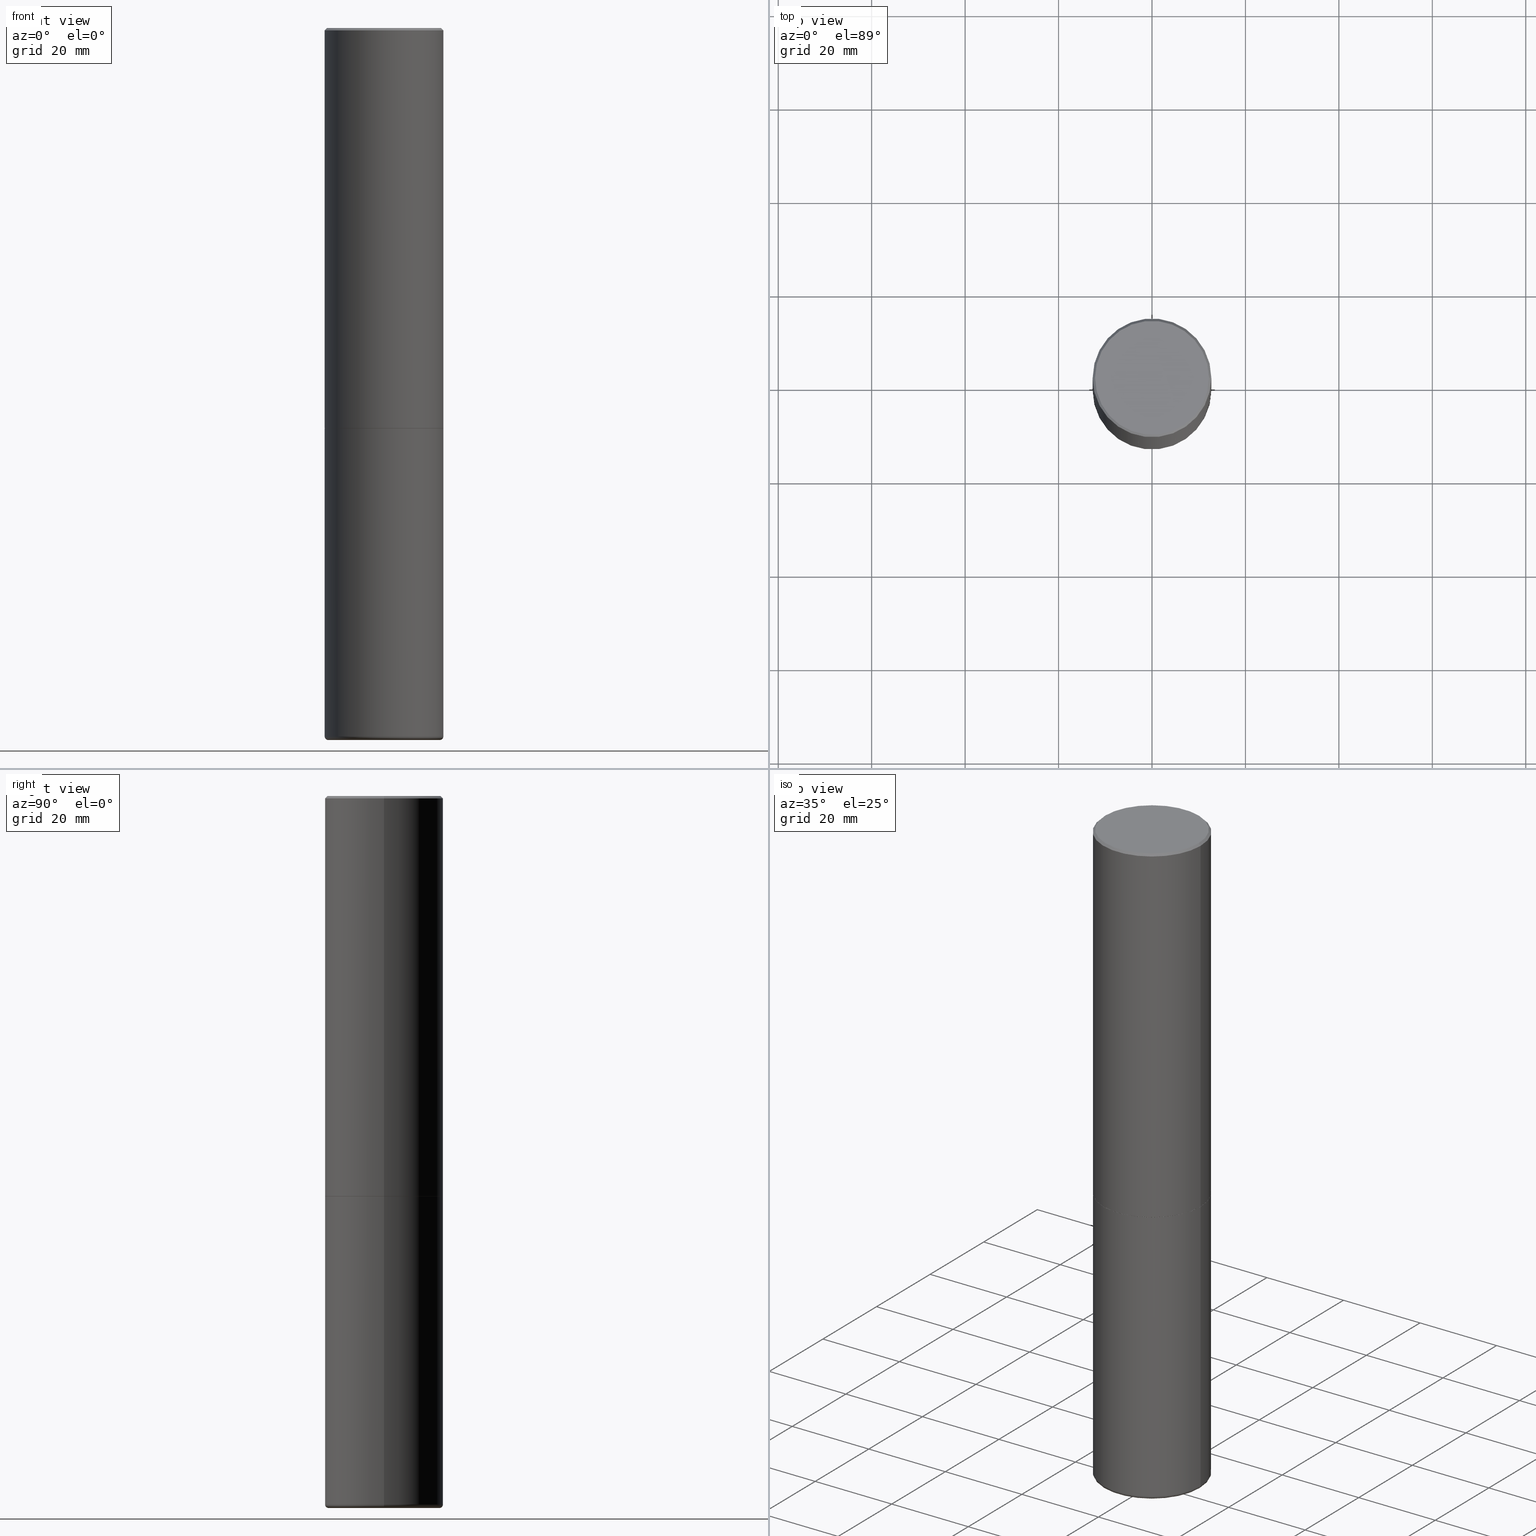
[diagram: canonical four-view strip — front | top / right | iso, engineering-drawing reading convention]
A machine part, canonical four-view strip (front | top / right | iso — engineering-drawing reading convention). The complete STEP part file that produces these views, byte-faithful:
ISO-10303-21;
HEADER;
FILE_DESCRIPTION (( 'STEP AP203' ),
    '1' );
FILE_NAME ('35124.STEP',
    '2022-07-29T12:17:49',
    ( '' ),
    ( '' ),
    'SwSTEP 2.0',
    'SolidWorks 2022',
    '' );
FILE_SCHEMA (( 'CONFIG_CONTROL_DESIGN' ));
ENDSEC;

DATA;
#1 = VERTEX_POINT ( 'NONE', #338 ) ;
#2 = ADVANCED_FACE ( 'NONE', ( #333 ), #213, .T. ) ;
#3 = DIRECTION ( 'NONE',  ( -2.445468806185136597E-29, 3.491481338843145583E-15, 1.000000000000000000 ) ) ;
#4 = EDGE_CURVE ( 'NONE', #128, #76, #237, .T. ) ;
#5 = DIRECTION ( 'NONE',  ( 1.000000000000000000, -6.982962677686269077E-15, 4.883557194083114022E-29 ) ) ;
#6 = ORIENTED_EDGE ( 'NONE', *, *, #396, .T. ) ;
#7 = DIRECTION ( 'NONE',  ( -2.445468806185136597E-29, 3.491481338843145583E-15, 1.000000000000000000 ) ) ;
#8 = FACE_OUTER_BOUND ( 'NONE', #329, .T. ) ;
#9 = CARTESIAN_POINT ( 'NONE',  ( 4.890937612370341472E-31, -6.982962677686388984E-17, -0.02000000000000028144 ) ) ;
#10 = ORIENTED_EDGE ( 'NONE', *, *, #309, .T. ) ;
#11 = CONICAL_SURFACE ( 'NONE', #377, 0.4377382039350493637, 1.535889741755009474 ) ;
#12 = DIRECTION ( 'NONE',  ( -2.445468806185136597E-29, 3.491481338843145583E-15, 1.000000000000000000 ) ) ;
#13 = DIRECTION ( 'NONE',  ( 1.000000000000000000, -6.982962677686267499E-15, 4.876036955247141175E-29 ) ) ;
#14 = EDGE_CURVE ( 'NONE', #248, #27, #313, .T. ) ;
#15 = ORIENTED_EDGE ( 'NONE', *, *, #55, .T. ) ;
#16 = FACE_OUTER_BOUND ( 'NONE', #345, .T. ) ;
#17 = AXIS2_PLACEMENT_3D ( 'NONE', #258, #407, #67 ) ;
#18 = DIRECTION ( 'NONE',  ( -2.445468806185136597E-29, 3.491481338843145583E-15, 1.000000000000000000 ) ) ;
#19 = CC_DESIGN_PERSON_AND_ORGANIZATION_ASSIGNMENT ( #446, #383, ( #208 ) ) ;
#20 = EDGE_CURVE ( 'NONE', #176, #262, #395, .T. ) ;
#21 = DIRECTION ( 'NONE',  ( 1.000000000000000000, -6.982962677686269866E-15, 0.000000000000000000 ) ) ;
#22 = PERSON ( 'UNSPECIFIED', 'UNSPECIFIED', 'UNSPECIFIED', ('UNSPECIFIED'), ('UNSPECIFIED'), ('UNSPECIFIED') ) ;
#23 = PLANE ( 'NONE',  #280 ) ;
#24 = VERTEX_POINT ( 'NONE', #394 ) ;
#25 = LINE ( 'NONE', #299, #433 ) ;
#26 = VECTOR ( 'NONE', #474, 39.37007874015748143 ) ;
#27 = VERTEX_POINT ( 'NONE', #469 ) ;
#28 = FACE_OUTER_BOUND ( 'NONE', #416, .T. ) ;
#29 = FACE_OUTER_BOUND ( 'NONE', #44, .T. ) ;
#30 = ORIENTED_EDGE ( 'NONE', *, *, #174, .T. ) ;
#31 = SHAPE_DEFINITION_REPRESENTATION ( #153, #230 ) ;
#32 = CARTESIAN_POINT ( 'NONE',  ( 0.000000000000000000, 0.000000000000000000, 0.000000000000000000 ) ) ;
#33 = MANIFOLD_SOLID_BREP ( 'Body-Move/Copy2[1]', #363 ) ;
#34 = PERSON_AND_ORGANIZATION ( #22, #91 ) ;
#35 = AXIS2_PLACEMENT_3D ( 'NONE', #87, #240, #390 ) ;
#36 = PERSON_AND_ORGANIZATION ( #22, #91 ) ;
#37 = CIRCLE ( 'NONE', #439, 0.4999999999999994449 ) ;
#38 = ORIENTED_EDGE ( 'NONE', *, *, #461, .T. ) ;
#39 = CC_DESIGN_DATE_AND_TIME_ASSIGNMENT ( #297, #157, ( #113 ) ) ;
#40 = EDGE_LOOP ( 'NONE', ( #392, #181, #387, #49 ) ) ;
#41 = PERSON_AND_ORGANIZATION ( #22, #91 ) ;
#42 = ORIENTED_EDGE ( 'NONE', *, *, #14, .T. ) ;
#43 = DIRECTION ( 'NONE',  ( 1.000000000000000000, -6.982962677686210701E-15, 0.000000000000000000 ) ) ;
#44 = EDGE_LOOP ( 'NONE', ( #197, #86, #382, #441 ) ) ;
#45 = CARTESIAN_POINT ( 'NONE',  ( -0.4989999999999994440, -8.238141267152723273E-15, -3.375000000000000888 ) ) ;
#46 = VECTOR ( 'NONE', #277, 39.37007874015748854 ) ;
#47 = AXIS2_PLACEMENT_3D ( 'NONE', #180, #284, #62 ) ;
#48 = DIRECTION ( 'NONE',  ( 2.445468806185136597E-29, -3.491481338843145583E-15, -1.000000000000000000 ) ) ;
#49 = ORIENTED_EDGE ( 'NONE', *, *, #14, .F. ) ;
#50 = DIRECTION ( 'NONE',  ( -2.445468806185136597E-29, 3.491481338843145583E-15, 1.000000000000000000 ) ) ;
#51 = CARTESIAN_POINT ( 'NONE',  ( -0.4377382039350493637, -1.789120346210978746E-14, -5.999720740230696236 ) ) ;
#52 = AXIS2_PLACEMENT_3D ( 'NONE', #169, #132, #165 ) ;
#53 = EDGE_LOOP ( 'NONE', ( #172, #64, #30, #478 ) ) ;
#54 = CC_DESIGN_SECURITY_CLASSIFICATION ( #208, ( #71 ) ) ;
#55 = EDGE_CURVE ( 'NONE', #97, #487, #202, .T. ) ;
#56 = CARTESIAN_POINT ( 'NONE',  ( -3.131554243005659264E-46, 4.471029511141341874E-32, 1.280553747030123384E-17 ) ) ;
#57 = LINE ( 'NONE', #175, #403 ) ;
#58 = ADVANCED_FACE ( 'NONE', ( #8 ), #282, .F. ) ;
#59 = FACE_OUTER_BOUND ( 'NONE', #158, .T. ) ;
#60 = AXIS2_PLACEMENT_3D ( 'NONE', #125, #85, #43 ) ;
#61 = AXIS2_PLACEMENT_3D ( 'NONE', #111, #3, #301 ) ;
#62 = DIRECTION ( 'NONE',  ( 1.000000000000000000, -6.982962677686265922E-15, 4.876176775795935793E-29 ) ) ;
#63 = EDGE_CURVE ( 'NONE', #487, #159, #246, .T. ) ;
#64 = ORIENTED_EDGE ( 'NONE', *, *, #250, .T. ) ;
#65 = CARTESIAN_POINT ( 'NONE',  ( 0.4999999999999990563, -3.500078625662622769E-15, -0.02000000000000028144 ) ) ;
#66 = DATE_AND_TIME ( #413, #214 ) ;
#67 = DIRECTION ( 'NONE',  ( 1.000000000000000000, -6.982962677686267499E-15, 4.876036955247141175E-29 ) ) ;
#68 = COORDINATED_UNIVERSAL_TIME_OFFSET ( 5, 0, .BEHIND. ) ;
#69 = VECTOR ( 'NONE', #352, 39.37007874015748143 ) ;
#70 = CARTESIAN_POINT ( 'NONE',  ( 1.467212991605616561E-28, -2.094791300278565904E-14, -5.999720740230696236 ) ) ;
#71 = PRODUCT_DEFINITION_FORMATION_WITH_SPECIFIED_SOURCE ( 'ANY', '', #350, .NOT_KNOWN. ) ;
#72 = APPROVAL_STATUS ( 'not_yet_approved' ) ;
#73 = SECURITY_CLASSIFICATION_LEVEL ( 'unclassified' ) ;
#74 = ORIENTED_EDGE ( 'NONE', *, *, #20, .T. ) ;
#75 = CALENDAR_DATE ( 2022, 29, 7 ) ;
#76 = VERTEX_POINT ( 'NONE', #354 ) ;
#77 = UNCERTAINTY_MEASURE_WITH_UNIT (LENGTH_MEASURE( 1.000000000000000082E-05 ), #452, 'distance_accuracy_value', 'NONE');
#78 = CC_DESIGN_PERSON_AND_ORGANIZATION_ASSIGNMENT ( #191, #109, ( #71 ) ) ;
#79 = EDGE_CURVE ( 'NONE', #159, #163, #316, .T. ) ;
#80 = AXIS2_PLACEMENT_3D ( 'NONE', #9, #48, #273 ) ;
#81 = DIRECTION ( 'NONE',  ( -1.000000000000000000, 6.982962677686268288E-15, 0.000000000000000000 ) ) ;
#82 = CC_DESIGN_APPROVAL ( #217, ( #113 ) ) ;
#83 = ADVANCED_FACE ( 'NONE', ( #95 ), #271, .T. ) ;
#84 = EDGE_LOOP ( 'NONE', ( #160, #342, #123 ) ) ;
#85 = DIRECTION ( 'NONE',  ( -6.982962677686266711E-15, -1.000000000000000000, 3.491481338843145583E-15 ) ) ;
#86 = ORIENTED_EDGE ( 'NONE', *, *, #274, .T. ) ;
#87 = CARTESIAN_POINT ( 'NONE',  ( 1.467281283711081734E-28, -2.094888803305886955E-14, -5.999999999999999112 ) ) ;
#88 = ORIENTED_EDGE ( 'NONE', *, *, #167, .T. ) ;
#89 = DIRECTION ( 'NONE',  ( 1.000000000000000000, -6.982962677686268288E-15, 0.000000000000000000 ) ) ;
#90 = CLOSED_SHELL ( 'NONE', ( #234, #406, #83, #96, #477, #400, #337, #429 ) ) ;
#91 = ORGANIZATION ( 'UNSPECIFIED', 'UNSPECIFIED', '' ) ;
#92 = ORIENTED_EDGE ( 'NONE', *, *, #365, .T. ) ;
#93 = DIRECTION ( 'NONE',  ( -0.9999619230641716427, 6.952228252019315186E-15, -0.008726535498333042040 ) ) ;
#94 = EDGE_LOOP ( 'NONE', ( #6, #298, #353, #229 ) ) ;
#95 = FACE_OUTER_BOUND ( 'NONE', #233, .T. ) ;
#96 = ADVANCED_FACE ( 'NONE', ( #460 ), #310, .T. ) ;
#97 = VERTEX_POINT ( 'NONE', #205 ) ;
#98 = DIRECTION ( 'NONE',  ( 1.000000000000000000, -6.982962677686269866E-15, 0.000000000000000000 ) ) ;
#99 = CIRCLE ( 'NONE', #52, 0.4999999999999994449 ) ;
#100 = ADVANCED_FACE ( 'NONE', ( #428 ), #488, .T. ) ;
#101 = EDGE_LOOP ( 'NONE', ( #126, #304, #385, #415 ) ) ;
#102 = AXIS2_PLACEMENT_3D ( 'NONE', #70, #146, #294 ) ;
#103 = CARTESIAN_POINT ( 'NONE',  ( 0.4697382039350493921, -2.417152604063207250E-14, -5.999999999999999112 ) ) ;
#104 = CARTESIAN_POINT ( 'NONE',  ( -0.4377382039350493637, -1.789120346210978746E-14, -5.999720740230696236 ) ) ;
#105 = DIRECTION ( 'NONE',  ( 7.105427357601001859E-15, 1.000000000000000000, -3.491481338843145583E-15 ) ) ;
#106 = AXIS2_PLACEMENT_3D ( 'NONE', #289, #434, #430 ) ;
#107 = VECTOR ( 'NONE', #367, 39.37007874015748143 ) ;
#108 = DIRECTION ( 'NONE',  ( -2.445468806185136597E-29, 3.491481338843145583E-15, 1.000000000000000000 ) ) ;
#109 = PERSON_AND_ORGANIZATION_ROLE ( 'design_supplier' ) ;
#110 = DIRECTION ( 'NONE',  ( 0.7071067811868130271, -2.468850131085038979E-15, 0.7071067811862817853 ) ) ;
#111 = CARTESIAN_POINT ( 'NONE',  ( 0.000000000000000000, 0.000000000000000000, 0.000000000000000000 ) ) ;
#112 = COORDINATED_UNIVERSAL_TIME_OFFSET ( 5, 0, .BEHIND. ) ;
#113 = PRODUCT_DEFINITION ( 'UNKNOWN', '', #71, #455 ) ;
#114 = COORDINATED_UNIVERSAL_TIME_OFFSET ( 5, 0, .BEHIND. ) ;
#115 = CYLINDRICAL_SURFACE ( 'NONE', #453, 0.4999999999999992228 ) ;
#116 =( LENGTH_UNIT ( ) NAMED_UNIT ( * ) SI_UNIT ( $, .METRE. ) );
#117 = AXIS2_PLACEMENT_3D ( 'NONE', #275, #422, #129 ) ;
#118 = DIRECTION ( 'NONE',  ( 1.000000000000000000, -6.982962677686267499E-15, 4.876176775795935793E-29 ) ) ;
#119 = AXIS2_PLACEMENT_3D ( 'NONE', #251, #219, #335 ) ;
#120 = ORIENTED_EDGE ( 'NONE', *, *, #249, .T. ) ;
#121 =( NAMED_UNIT ( * ) SI_UNIT ( $, .STERADIAN. ) SOLID_ANGLE_UNIT ( ) );
#122 = CARTESIAN_POINT ( 'NONE',  ( 1.467212991605616561E-28, -2.094791300278565904E-14, -5.999720740230696236 ) ) ;
#123 = ORIENTED_EDGE ( 'NONE', *, *, #63, .F. ) ;
#124 = AXIS2_PLACEMENT_3D ( 'NONE', #281, #170, #464 ) ;
#125 = CARTESIAN_POINT ( 'NONE',  ( 0.4700000000000004730, -2.412614003975345375E-14, -5.970001142308075437 ) ) ;
#126 = ORIENTED_EDGE ( 'NONE', *, *, #371, .F. ) ;
#127 = CARTESIAN_POINT ( 'NONE',  ( 8.253457220874838256E-29, -1.178374951859561925E-14, -3.375000000000000888 ) ) ;
#128 = VERTEX_POINT ( 'NONE', #319 ) ;
#129 = DIRECTION ( 'NONE',  ( 1.000000000000000000, -6.982962677686266711E-15, 0.000000000000000000 ) ) ;
#130 = CARTESIAN_POINT ( 'NONE',  ( 4.890937612370341472E-31, -6.982962677686388984E-17, -0.02000000000000028144 ) ) ;
#131 = CIRCLE ( 'NONE', #17, 0.4799999999999988165 ) ;
#132 = DIRECTION ( 'NONE',  ( -2.445468806185136597E-29, 3.491481338843145583E-15, 1.000000000000000000 ) ) ;
#133 = CC_DESIGN_PERSON_AND_ORGANIZATION_ASSIGNMENT ( #268, #228, ( #113 ) ) ;
#134 = EDGE_LOOP ( 'NONE', ( #283, #15, #231 ) ) ;
#135 = FACE_OUTER_BOUND ( 'NONE', #370, .T. ) ;
#136 = LINE ( 'NONE', #103, #107 ) ;
#137 = CIRCLE ( 'NONE', #318, 0.4697382039350493921 ) ;
#138 = DIRECTION ( 'NONE',  ( 1.000000000000000000, -6.982962677686266711E-15, 4.876176775795935232E-29 ) ) ;
#139 = EDGE_CURVE ( 'NONE', #76, #27, #99, .T. ) ;
#140 = DIRECTION ( 'NONE',  ( -2.445468806185136597E-29, 3.491481338843145583E-15, 1.000000000000000000 ) ) ;
#141 = CARTESIAN_POINT ( 'NONE',  ( 1.467281283711081734E-28, -2.094888803305886955E-14, -5.999999999999999112 ) ) ;
#142 = APPLICATION_CONTEXT ( 'configuration controlled 3d designs of mechanical parts and assemblies' ) ;
#143 = ORIENTED_EDGE ( 'NONE', *, *, #305, .T. ) ;
#144 = AXIS2_PLACEMENT_3D ( 'NONE', #369, #402, #286 ) ;
#145 = LOCAL_TIME ( 8, 17, 49.00000000000000000, #112 ) ;
#146 = DIRECTION ( 'NONE',  ( -2.445468806185136597E-29, 3.491481338843145583E-15, 1.000000000000000000 ) ) ;
#147 = EDGE_CURVE ( 'NONE', #360, #176, #468, .T. ) ;
#148 = PERSON_AND_ORGANIZATION ( #22, #91 ) ;
#149 = CARTESIAN_POINT ( 'NONE',  ( 8.251011752068656016E-29, -1.178025803725677782E-14, -3.374000000000001886 ) ) ;
#150 = DIRECTION ( 'NONE',  ( 1.000000000000000000, -6.982962677686266711E-15, 0.000000000000000000 ) ) ;
#151 = ORIENTED_EDGE ( 'NONE', *, *, #461, .F. ) ;
#152 = DIRECTION ( 'NONE',  ( 0.000000000000000000, 0.000000000000000000, 1.000000000000000000 ) ) ;
#153 = PRODUCT_DEFINITION_SHAPE ( 'NONE', 'NONE',  #113 ) ;
#154 = PERSON_AND_ORGANIZATION_ROLE ( 'creator' ) ;
#155 = VECTOR ( 'NONE', #351, 39.37007874015748143 ) ;
#156 = APPROVAL_PERSON_ORGANIZATION ( #41, #217, #259 ) ;
#157 = DATE_TIME_ROLE ( 'creation_date' ) ;
#158 = EDGE_LOOP ( 'NONE', ( #491, #463 ) ) ;
#159 = VERTEX_POINT ( 'NONE', #51 ) ;
#160 = ORIENTED_EDGE ( 'NONE', *, *, #55, .F. ) ;
#161 = DIRECTION ( 'NONE',  ( -1.000000000000000000, 6.982962677686268288E-15, 0.000000000000000000 ) ) ;
#162 = CIRCLE ( 'NONE', #412, 0.02999999999999913500 ) ;
#163 = VERTEX_POINT ( 'NONE', #207 ) ;
#164 = CIRCLE ( 'NONE', #279, 0.4989999999999994440 ) ;
#165 = DIRECTION ( 'NONE',  ( 1.000000000000000000, -6.982962677686266711E-15, 0.000000000000000000 ) ) ;
#166 = AXIS2_PLACEMENT_3D ( 'NONE', #448, #190, #263 ) ;
#167 = EDGE_CURVE ( 'NONE', #176, #360, #164, .T. ) ;
#168 = DIRECTION ( 'NONE',  ( 2.445468806185136597E-29, -3.491481338843145583E-15, -1.000000000000000000 ) ) ;
#169 = CARTESIAN_POINT ( 'NONE',  ( 8.253457220874838256E-29, -1.178374951859561925E-14, -3.375000000000000888 ) ) ;
#170 = DIRECTION ( 'NONE',  ( 2.438088387897960049E-29, -3.491481338843145188E-15, -1.000000000000000000 ) ) ;
#171 = APPROVAL_PERSON_ORGANIZATION ( #380, #269, #454 ) ;
#172 = ORIENTED_EDGE ( 'NONE', *, *, #249, .F. ) ;
#173 = FACE_OUTER_BOUND ( 'NONE', #101, .T. ) ;
#174 = EDGE_CURVE ( 'NONE', #24, #248, #356, .T. ) ;
#175 = CARTESIAN_POINT ( 'NONE',  ( -0.4999999999999990563, 3.421651712066262957E-15, -0.02000000000000028144 ) ) ;
#176 = VERTEX_POINT ( 'NONE', #315 ) ;
#177 = DIRECTION ( 'NONE',  ( -2.445468806185136597E-29, 3.491481338843145583E-15, 1.000000000000000000 ) ) ;
#178 = CIRCLE ( 'NONE', #334, 0.4999999999999994449 ) ;
#179 = CARTESIAN_POINT ( 'NONE',  ( 1.459945156640402969E-28, -2.084414758124090713E-14, -5.970001142308075437 ) ) ;
#180 = CARTESIAN_POINT ( 'NONE',  ( 8.253457220874838256E-29, -1.178374951859561925E-14, -3.375000000000000888 ) ) ;
#181 = ORIENTED_EDGE ( 'NONE', *, *, #4, .T. ) ;
#182 = APPROVAL_DATE_TIME ( #442, #269 ) ;
#183 = CC_DESIGN_PERSON_AND_ORGANIZATION_ASSIGNMENT ( #34, #154, ( #71 ) ) ;
#184 = DIRECTION ( 'NONE',  ( -2.445468806185136597E-29, 3.491481338843145583E-15, 1.000000000000000000 ) ) ;
#185 = ORIENTED_EDGE ( 'NONE', *, *, #405, .F. ) ;
#186 = CIRCLE ( 'NONE', #473, 0.4999999999999989453 ) ;
#187 = DIRECTION ( 'NONE',  ( -2.445468806185136877E-29, 3.491481338843145188E-15, 1.000000000000000000 ) ) ;
#188 = VERTEX_POINT ( 'NONE', #199 ) ;
#189 = FACE_OUTER_BOUND ( 'NONE', #312, .T. ) ;
#190 = DIRECTION ( 'NONE',  ( -2.445468806185136597E-29, 3.491481338843145583E-15, 1.000000000000000000 ) ) ;
#191 = PERSON_AND_ORGANIZATION ( #22, #91 ) ;
#192 = APPLICATION_PROTOCOL_DEFINITION ( 'international standard', 'config_control_design', 1994, #276 ) ;
#193 = AXIS2_PLACEMENT_3D ( 'NONE', #130, #168, #243 ) ;
#194 = CALENDAR_DATE ( 2022, 29, 7 ) ;
#195 = FACE_OUTER_BOUND ( 'NONE', #134, .T. ) ;
#196 = EDGE_CURVE ( 'NONE', #347, #331, #254, .T. ) ;
#197 = ORIENTED_EDGE ( 'NONE', *, *, #355, .F. ) ;
#198 = EDGE_CURVE ( 'NONE', #24, #163, #451, .T. ) ;
#199 = CARTESIAN_POINT ( 'NONE',  ( -0.4799999999999988165, 3.386736898677831703E-15, 1.280553747027767124E-17 ) ) ;
#200 = ORIENTED_EDGE ( 'NONE', *, *, #196, .T. ) ;
#201 = CONICAL_SURFACE ( 'NONE', #386, 0.4989999999999994440, 0.7853981633978239785 ) ;
#202 = LINE ( 'NONE', #308, #155 ) ;
#203 = CARTESIAN_POINT ( 'NONE',  ( -0.4999999999999991673, 3.552713678800495013E-15, -2.459467545127448967E-29 ) ) ;
#204 = ORIENTED_EDGE ( 'NONE', *, *, #174, .F. ) ;
#205 = CARTESIAN_POINT ( 'NONE',  ( 1.464166226079622307E-28, -2.088464020784759386E-14, -5.984434585313348265 ) ) ;
#206 = ADVANCED_FACE ( 'NONE', ( #218 ), #241, .F. ) ;
#207 = CARTESIAN_POINT ( 'NONE',  ( -0.4697382039350493921, -1.745131562517441058E-14, -5.999999999999999112 ) ) ;
#208 = SECURITY_CLASSIFICATION ( '', '', #73 ) ;
#209 = ORIENTED_EDGE ( 'NONE', *, *, #285, .F. ) ;
#210 = CARTESIAN_POINT ( 'NONE',  ( -0.4999999999999994449, -2.372330153216321997E-15, -3.374000000000001886 ) ) ;
#211 = CARTESIAN_POINT ( 'NONE',  ( 0.4989999999999994440, -1.526824789476106186E-14, -3.375000000000000888 ) ) ;
#212 = CARTESIAN_POINT ( 'NONE',  ( -0.4999999999999990563, 3.421651712066262957E-15, -0.02000000000000028144 ) ) ;
#213 = TOROIDAL_SURFACE ( 'NONE', #438, 0.4700000000000004730, 0.02999999999999915928 ) ;
#214 = LOCAL_TIME ( 8, 17, 49.00000000000000000, #482 ) ;
#215 = LINE ( 'NONE', #437, #232 ) ;
#216 = ORIENTED_EDGE ( 'NONE', *, *, #139, .T. ) ;
#217 = APPROVAL ( #72, 'UNSPECIFIED' ) ;
#218 = FACE_OUTER_BOUND ( 'NONE', #456, .T. ) ;
#219 = DIRECTION ( 'NONE',  ( -2.445468806185136597E-29, 3.491481338843145583E-15, 1.000000000000000000 ) ) ;
#220 = CALENDAR_DATE ( 2022, 29, 7 ) ;
#221 = DIMENSIONAL_EXPONENTS ( 1.000000000000000000, 0.000000000000000000, 0.000000000000000000, 0.000000000000000000, 0.000000000000000000, 0.000000000000000000, 0.000000000000000000 ) ;
#222 = VECTOR ( 'NONE', #110, 39.37007874015748854 ) ;
#223 = AXIS2_PLACEMENT_3D ( 'NONE', #291, #140, #21 ) ;
#224 = LINE ( 'NONE', #483, #393 ) ;
#225 = APPROVAL_DATE_TIME ( #378, #368 ) ;
#226 = ORIENTED_EDGE ( 'NONE', *, *, #466, .T. ) ;
#227 = ADVANCED_FACE ( 'NONE', ( #16 ), #256, .T. ) ;
#228 = PERSON_AND_ORGANIZATION_ROLE ( 'creator' ) ;
#229 = ORIENTED_EDGE ( 'NONE', *, *, #420, .F. ) ;
#230 = ADVANCED_BREP_SHAPE_REPRESENTATION ( '35124', ( #33, #366, #288 ), #293 ) ;
#231 = ORIENTED_EDGE ( 'NONE', *, *, #440, .F. ) ;
#232 = VECTOR ( 'NONE', #472, 39.37007874015748143 ) ;
#233 = EDGE_LOOP ( 'NONE', ( #151, #424, #226, #459 ) ) ;
#234 = ADVANCED_FACE ( 'NONE', ( #135 ), #317, .T. ) ;
#235 = ADVANCED_FACE ( 'NONE', ( #328 ), #325, .T. ) ;
#236 = EDGE_LOOP ( 'NONE', ( #307, #120, #209, #204 ) ) ;
#237 = LINE ( 'NONE', #203, #292 ) ;
#238 = ADVANCED_FACE ( 'NONE', ( #173 ), #432, .F. ) ;
#239 = ORIENTED_EDGE ( 'NONE', *, *, #396, .F. ) ;
#240 = DIRECTION ( 'NONE',  ( -2.445468806185136597E-29, 3.491481338843145583E-15, 1.000000000000000000 ) ) ;
#241 = CONICAL_SURFACE ( 'NONE', #411, 0.4697382039350493921, 1.562069680534965865 ) ;
#242 = AXIS2_PLACEMENT_3D ( 'NONE', #56, #177, #13 ) ;
#243 = DIRECTION ( 'NONE',  ( -1.000000000000000000, 6.982962677686266711E-15, 0.000000000000000000 ) ) ;
#244 = DIRECTION ( 'NONE',  ( 1.000000000000000000, -6.982962677686269077E-15, 4.883557194083114022E-29 ) ) ;
#245 = CARTESIAN_POINT ( 'NONE',  ( -0.4700000000000004730, -1.750459672316843172E-14, -5.970001142308075437 ) ) ;
#246 = CIRCLE ( 'NONE', #326, 0.4377382039350493637 ) ;
#247 = LOCAL_TIME ( 8, 17, 49.00000000000000000, #343 ) ;
#248 = VERTEX_POINT ( 'NONE', #401 ) ;
#249 = EDGE_CURVE ( 'NONE', #163, #128, #162, .T. ) ;
#250 = EDGE_CURVE ( 'NONE', #163, #24, #137, .T. ) ;
#251 = CARTESIAN_POINT ( 'NONE',  ( 8.253457220874838256E-29, -1.178374951859561925E-14, -3.375000000000000888 ) ) ;
#252 = CARTESIAN_POINT ( 'NONE',  ( 1.467281283711081734E-28, -2.094888803305886955E-14, -5.999999999999999112 ) ) ;
#253 = CARTESIAN_POINT ( 'NONE',  ( 0.000000000000000000, 0.000000000000000000, 0.000000000000000000 ) ) ;
#254 = CIRCLE ( 'NONE', #117, 0.4999999999999990563 ) ;
#255 = CONICAL_SURFACE ( 'NONE', #302, 0.4377382039350493637, 1.535889741755009474 ) ;
#256 = CYLINDRICAL_SURFACE ( 'NONE', #144, 0.4999999999999991673 ) ;
#257 = VERTEX_POINT ( 'NONE', #404 ) ;
#258 = CARTESIAN_POINT ( 'NONE',  ( -3.131554243005659264E-46, 4.471029511141341874E-32, 1.280553747030123384E-17 ) ) ;
#259 = APPROVAL_ROLE ( '' ) ;
#260 = DIRECTION ( 'NONE',  ( 1.000000000000000000, -6.982962677686264344E-15, 0.000000000000000000 ) ) ;
#261 = CIRCLE ( 'NONE', #223, 0.4999999999999989453 ) ;
#262 = VERTEX_POINT ( 'NONE', #210 ) ;
#263 = DIRECTION ( 'NONE',  ( 1.000000000000000000, -6.982962677686266711E-15, 0.000000000000000000 ) ) ;
#264 = DATE_TIME_ROLE ( 'classification_date' ) ;
#265 = ORIENTED_EDGE ( 'NONE', *, *, #79, .F. ) ;
#266 = LENGTH_MEASURE_WITH_UNIT ( LENGTH_MEASURE( 0.02539999999999999897 ), #116 );
#267 = ORIENTED_EDGE ( 'NONE', *, *, #4, .F. ) ;
#268 = PERSON_AND_ORGANIZATION ( #22, #91 ) ;
#269 = APPROVAL ( #489, 'UNSPECIFIED' ) ;
#270 = ORIENTED_EDGE ( 'NONE', *, *, #445, .F. ) ;
#271 = CONICAL_SURFACE ( 'NONE', #193, 0.4999999999999990563, 0.7853981633974458365 ) ;
#272 = CC_DESIGN_APPROVAL ( #368, ( #208 ) ) ;
#273 = DIRECTION ( 'NONE',  ( -1.000000000000000000, 6.982962677686266711E-15, 0.000000000000000000 ) ) ;
#274 = EDGE_CURVE ( 'NONE', #262, #1, #37, .T. ) ;
#275 = CARTESIAN_POINT ( 'NONE',  ( 4.890937612370341472E-31, -6.982962677686388984E-17, -0.02000000000000028144 ) ) ;
#276 = APPLICATION_CONTEXT ( 'configuration controlled 3d designs of mechanical parts and assemblies' ) ;
#277 = DIRECTION ( 'NONE',  ( -0.7071067811868130271, 7.493145998871311837E-15, 0.7071067811862817853 ) ) ;
#278 = ORIENTED_EDGE ( 'NONE', *, *, #147, .T. ) ;
#279 = AXIS2_PLACEMENT_3D ( 'NONE', #349, #12, #419 ) ;
#280 = AXIS2_PLACEMENT_3D ( 'NONE', #449, #410, #332 ) ;
#281 = CARTESIAN_POINT ( 'NONE',  ( 3.491481338843211453E-15, 0.4999999999999876210, -3.375000000000002665 ) ) ;
#282 = PLANE ( 'NONE',  #124 ) ;
#283 = ORIENTED_EDGE ( 'NONE', *, *, #322, .F. ) ;
#284 = DIRECTION ( 'NONE',  ( -2.438088387897960049E-29, 3.491481338843145188E-15, 1.000000000000000000 ) ) ;
#285 = EDGE_CURVE ( 'NONE', #248, #128, #186, .T. ) ;
#286 = DIRECTION ( 'NONE',  ( 1.000000000000000000, -6.982962677686266711E-15, 4.876176775795935232E-29 ) ) ;
#287 = AXIS2_PLACEMENT_3D ( 'NONE', #252, #436, #290 ) ;
#288 = AXIS2_PLACEMENT_3D ( 'NONE', #32, #152, #374 ) ;
#289 = CARTESIAN_POINT ( 'NONE',  ( 8.253457220874838256E-29, -1.178374951859561925E-14, -3.375000000000000888 ) ) ;
#290 = DIRECTION ( 'NONE',  ( -1.000000000000000000, 6.982962677686263555E-15, 0.000000000000000000 ) ) ;
#291 = CARTESIAN_POINT ( 'NONE',  ( 1.459945156640402969E-28, -2.084414758124090713E-14, -5.970001142308075437 ) ) ;
#292 = VECTOR ( 'NONE', #388, 39.37007874015748143 ) ;
#293 =( GEOMETRIC_REPRESENTATION_CONTEXT ( 3 ) GLOBAL_UNCERTAINTY_ASSIGNED_CONTEXT ( ( #77 ) ) GLOBAL_UNIT_ASSIGNED_CONTEXT ( ( #452, #348, #121 ) ) REPRESENTATION_CONTEXT ( 'NONE', 'WORKASPACE' ) );
#294 = DIRECTION ( 'NONE',  ( 1.000000000000000000, -6.982962677686268288E-15, 0.000000000000000000 ) ) ;
#295 = APPROVAL_STATUS ( 'not_yet_approved' ) ;
#296 = DIRECTION ( 'NONE',  ( -2.445468806185136597E-29, 3.491481338843145583E-15, 1.000000000000000000 ) ) ;
#297 = DATE_AND_TIME ( #220, #357 ) ;
#298 = ORIENTED_EDGE ( 'NONE', *, *, #355, .T. ) ;
#299 = CARTESIAN_POINT ( 'NONE',  ( 0.4999999999999992228, -3.491481338843128228E-15, 2.438088387897963973E-29 ) ) ;
#300 = ORIENTED_EDGE ( 'NONE', *, *, #371, .T. ) ;
#301 = DIRECTION ( 'NONE',  ( 1.000000000000000000, -6.982962677686267499E-15, 4.876176775795935793E-29 ) ) ;
#302 = AXIS2_PLACEMENT_3D ( 'NONE', #414, #303, #161 ) ;
#303 = DIRECTION ( 'NONE',  ( 2.445468806185136597E-29, -3.491481338843145583E-15, -1.000000000000000000 ) ) ;
#304 = ORIENTED_EDGE ( 'NONE', *, *, #63, .T. ) ;
#305 = EDGE_CURVE ( 'NONE', #188, #257, #425, .T. ) ;
#306 = PERSON_AND_ORGANIZATION_ROLE ( 'design_owner' ) ;
#307 = ORIENTED_EDGE ( 'NONE', *, *, #198, .T. ) ;
#308 = CARTESIAN_POINT ( 'NONE',  ( 0.4377382039350493637, -2.395101507443017040E-14, -5.999720740230696236 ) ) ;
#309 = EDGE_CURVE ( 'NONE', #128, #248, #261, .T. ) ;
#310 = CONICAL_SURFACE ( 'NONE', #80, 0.4999999999999990563, 0.7853981633974458365 ) ;
#311 = CIRCLE ( 'NONE', #119, 0.4999999999999994449 ) ;
#312 = EDGE_LOOP ( 'NONE', ( #431, #88, #323, #450 ) ) ;
#313 = LINE ( 'NONE', #358, #69 ) ;
#314 = ORIENTED_EDGE ( 'NONE', *, *, #250, .F. ) ;
#315 = CARTESIAN_POINT ( 'NONE',  ( -0.4989999999999994440, -8.232842812804502449E-15, -3.375000000000000888 ) ) ;
#316 = LINE ( 'NONE', #426, #375 ) ;
#317 = CONICAL_SURFACE ( 'NONE', #106, 0.4989999999999994440, 0.7853981633978239785 ) ;
#318 = AXIS2_PLACEMENT_3D ( 'NONE', #141, #398, #475 ) ;
#319 = CARTESIAN_POINT ( 'NONE',  ( -0.4999999999999989453, -1.276123487111776936E-14, -5.970001142308075437 ) ) ;
#320 = ORIENTED_EDGE ( 'NONE', *, *, #139, .F. ) ;
#321 = DIRECTION ( 'NONE',  ( -1.000000000000000000, 7.105427357601001859E-15, 0.000000000000000000 ) ) ;
#322 = EDGE_CURVE ( 'NONE', #97, #159, #471, .T. ) ;
#323 = ORIENTED_EDGE ( 'NONE', *, *, #445, .T. ) ;
#324 = CARTESIAN_POINT ( 'NONE',  ( 8.251011752068656016E-29, -1.178025803725677782E-14, -3.374000000000001886 ) ) ;
#325 = CYLINDRICAL_SURFACE ( 'NONE', #480, 0.4999999999999991673 ) ;
#326 = AXIS2_PLACEMENT_3D ( 'NONE', #423, #7, #89 ) ;
#327 = CIRCLE ( 'NONE', #102, 0.4377382039350493637 ) ;
#328 = FACE_OUTER_BOUND ( 'NONE', #40, .T. ) ;
#329 = EDGE_LOOP ( 'NONE', ( #389, #216 ) ) ;
#330 = DIRECTION ( 'NONE',  ( 2.445468806185136597E-29, -3.491481338843145583E-15, -1.000000000000000000 ) ) ;
#331 = VERTEX_POINT ( 'NONE', #65 ) ;
#332 = DIRECTION ( 'NONE',  ( -1.000000000000000000, 6.982962677686265922E-15, -4.876176775795935793E-29 ) ) ;
#333 = FACE_OUTER_BOUND ( 'NONE', #236, .T. ) ;
#334 = AXIS2_PLACEMENT_3D ( 'NONE', #149, #296, #150 ) ;
#335 = DIRECTION ( 'NONE',  ( 1.000000000000000000, -6.982962677686266711E-15, 0.000000000000000000 ) ) ;
#336 = CARTESIAN_POINT ( 'NONE',  ( 0.4377382039350493637, -2.395101507443017040E-14, -5.999720740230696236 ) ) ;
#337 = ADVANCED_FACE ( 'NONE', ( #59 ), #399, .F. ) ;
#338 = CARTESIAN_POINT ( 'NONE',  ( 0.4999999999999994449, -1.527173937609990644E-14, -3.374000000000001886 ) ) ;
#339 = CARTESIAN_POINT ( 'NONE',  ( 0.000000000000000000, 0.000000000000000000, 0.000000000000000000 ) ) ;
#340 = FACE_OUTER_BOUND ( 'NONE', #84, .T. ) ;
#341 = CALENDAR_DATE ( 2022, 29, 7 ) ;
#342 = ORIENTED_EDGE ( 'NONE', *, *, #322, .T. ) ;
#343 = COORDINATED_UNIVERSAL_TIME_OFFSET ( 5, 0, .BEHIND. ) ;
#344 = AXIS2_PLACEMENT_3D ( 'NONE', #465, #50, #244 ) ;
#345 = EDGE_LOOP ( 'NONE', ( #267, #10, #42, #320 ) ) ;
#346 = DIRECTION ( 'NONE',  ( 2.445468806185136597E-29, -3.491481338843145583E-15, -1.000000000000000000 ) ) ;
#347 = VERTEX_POINT ( 'NONE', #212 ) ;
#348 =( NAMED_UNIT ( * ) PLANE_ANGLE_UNIT ( ) SI_UNIT ( $, .RADIAN. ) );
#349 = CARTESIAN_POINT ( 'NONE',  ( 8.253457220874838256E-29, -1.178374951859561925E-14, -3.375000000000000888 ) ) ;
#350 = PRODUCT ( '35124', '35124', '', ( #408 ) ) ;
#351 = DIRECTION ( 'NONE',  ( 0.9993908270190957621, -6.978169709227544643E-15, -0.03489949670250152430 ) ) ;
#352 = DIRECTION ( 'NONE',  ( -2.445468806185136877E-29, 3.491481338843145188E-15, 1.000000000000000000 ) ) ;
#353 = ORIENTED_EDGE ( 'NONE', *, *, #466, .F. ) ;
#354 = CARTESIAN_POINT ( 'NONE',  ( -0.4999999999999993894, -1.276123487111776936E-14, -3.375000000000000888 ) ) ;
#355 = EDGE_CURVE ( 'NONE', #262, #347, #215, .T. ) ;
#356 = CIRCLE ( 'NONE', #60, 0.02999999999999913500 ) ;
#357 = LOCAL_TIME ( 8, 17, 49.00000000000000000, #68 ) ;
#358 = CARTESIAN_POINT ( 'NONE',  ( 0.4999999999999991673, -3.491481338843127439E-15, 2.438088387897963693E-29 ) ) ;
#359 = CARTESIAN_POINT ( 'NONE',  ( 1.467281283711081734E-28, -2.094888803305886955E-14, -5.999999999999999112 ) ) ;
#360 = VERTEX_POINT ( 'NONE', #211 ) ;
#361 = DIRECTION ( 'NONE',  ( -0.7071067811865457964, 2.468850131082238917E-15, -0.7071067811865492381 ) ) ;
#362 = DIRECTION ( 'NONE',  ( -1.000000000000000000, 6.982962677686263555E-15, 0.000000000000000000 ) ) ;
#363 = CLOSED_SHELL ( 'NONE', ( #206, #2, #235, #462, #486, #58, #227, #100, #238 ) ) ;
#364 = CIRCLE ( 'NONE', #166, 0.4999999999999990563 ) ;
#365 = EDGE_CURVE ( 'NONE', #188, #347, #57, .T. ) ;
#366 = MANIFOLD_SOLID_BREP ( 'Body-Move/Copy2[2]', #90 ) ;
#367 = DIRECTION ( 'NONE',  ( 0.9999619230641716427, -6.890705306874701477E-15, -0.008726535498333042040 ) ) ;
#368 = APPROVAL ( #295, 'UNSPECIFIED' ) ;
#369 = CARTESIAN_POINT ( 'NONE',  ( 0.000000000000000000, 0.000000000000000000, 0.000000000000000000 ) ) ;
#370 = EDGE_LOOP ( 'NONE', ( #278, #74, #239, #270 ) ) ;
#371 = EDGE_CURVE ( 'NONE', #487, #24, #136, .T. ) ;
#372 = CC_DESIGN_PERSON_AND_ORGANIZATION_ASSIGNMENT ( #36, #306, ( #350 ) ) ;
#373 = DIRECTION ( 'NONE',  ( 0.7071067811865457964, -7.319954787623249734E-15, -0.7071067811865492381 ) ) ;
#374 = DIRECTION ( 'NONE',  ( 1.000000000000000000, 0.000000000000000000, 0.000000000000000000 ) ) ;
#375 = VECTOR ( 'NONE', #93, 39.37007874015748143 ) ;
#376 = DIRECTION ( 'NONE',  ( -2.445468806185136597E-29, 3.491481338843145583E-15, 1.000000000000000000 ) ) ;
#377 = AXIS2_PLACEMENT_3D ( 'NONE', #122, #346, #81 ) ;
#378 = DATE_AND_TIME ( #75, #490 ) ;
#379 = CARTESIAN_POINT ( 'NONE',  ( 0.4989999999999994440, -1.526824789476106186E-14, -3.375000000000000888 ) ) ;
#380 = PERSON_AND_ORGANIZATION ( #22, #91 ) ;
#381 = APPROVAL_ROLE ( '' ) ;
#382 = ORIENTED_EDGE ( 'NONE', *, *, #420, .T. ) ;
#383 = PERSON_AND_ORGANIZATION_ROLE ( 'classification_officer' ) ;
#384 = AXIS2_PLACEMENT_3D ( 'NONE', #127, #467, #397 ) ;
#385 = ORIENTED_EDGE ( 'NONE', *, *, #79, .T. ) ;
#386 = AXIS2_PLACEMENT_3D ( 'NONE', #485, #479, #260 ) ;
#387 = ORIENTED_EDGE ( 'NONE', *, *, #391, .F. ) ;
#388 = DIRECTION ( 'NONE',  ( -2.445468806185136877E-29, 3.491481338843145188E-15, 1.000000000000000000 ) ) ;
#389 = ORIENTED_EDGE ( 'NONE', *, *, #391, .T. ) ;
#390 = DIRECTION ( 'NONE',  ( 1.000000000000000000, -6.982962677686263555E-15, 0.000000000000000000 ) ) ;
#391 = EDGE_CURVE ( 'NONE', #27, #76, #311, .T. ) ;
#392 = ORIENTED_EDGE ( 'NONE', *, *, #285, .T. ) ;
#393 = VECTOR ( 'NONE', #373, 39.37007874015748143 ) ;
#394 = CARTESIAN_POINT ( 'NONE',  ( 0.4697382039350493921, -2.422905237942069990E-14, -5.999999999999999112 ) ) ;
#395 = LINE ( 'NONE', #45, #46 ) ;
#396 = EDGE_CURVE ( 'NONE', #1, #262, #178, .T. ) ;
#397 = DIRECTION ( 'NONE',  ( 1.000000000000000000, -6.982962677686264344E-15, 0.000000000000000000 ) ) ;
#398 = DIRECTION ( 'NONE',  ( -2.445468806185136597E-29, 3.491481338843145583E-15, 1.000000000000000000 ) ) ;
#399 = PLANE ( 'NONE',  #47 ) ;
#400 = ADVANCED_FACE ( 'NONE', ( #189 ), #201, .T. ) ;
#401 = CARTESIAN_POINT ( 'NONE',  ( 0.4999999999999989453, -2.433562892008403418E-14, -5.970001142308075437 ) ) ;
#402 = DIRECTION ( 'NONE',  ( -2.445468806185136597E-29, 3.491481338843145583E-15, 1.000000000000000000 ) ) ;
#403 = VECTOR ( 'NONE', #361, 39.37007874015748143 ) ;
#404 = CARTESIAN_POINT ( 'NONE',  ( 0.4799999999999988165, -3.396558832296475394E-15, 1.280553747032483033E-17 ) ) ;
#405 = EDGE_CURVE ( 'NONE', #257, #331, #224, .T. ) ;
#406 = ADVANCED_FACE ( 'NONE', ( #447 ), #115, .T. ) ;
#407 = DIRECTION ( 'NONE',  ( -2.445468806185136597E-29, 3.491481338843145583E-15, 1.000000000000000000 ) ) ;
#408 = MECHANICAL_CONTEXT ( 'NONE', #276, 'mechanical' ) ;
#409 = CARTESIAN_POINT ( 'NONE',  ( 1.459945156640402969E-28, -2.084414758124090713E-14, -5.970001142308075437 ) ) ;
#410 = DIRECTION ( 'NONE',  ( 2.438088387897960049E-29, -3.491481338843145188E-15, -1.000000000000000000 ) ) ;
#411 = AXIS2_PLACEMENT_3D ( 'NONE', #359, #330, #362 ) ;
#412 = AXIS2_PLACEMENT_3D ( 'NONE', #245, #105, #321 ) ;
#413 = CALENDAR_DATE ( 2022, 29, 7 ) ;
#414 = CARTESIAN_POINT ( 'NONE',  ( 1.467212991605616561E-28, -2.094791300278565904E-14, -5.999720740230696236 ) ) ;
#415 = ORIENTED_EDGE ( 'NONE', *, *, #198, .F. ) ;
#416 = EDGE_LOOP ( 'NONE', ( #143, #38 ) ) ;
#417 = APPLICATION_PROTOCOL_DEFINITION ( 'international standard', 'config_control_design', 1994, #142 ) ;
#418 = CC_DESIGN_APPROVAL ( #269, ( #71 ) ) ;
#419 = DIRECTION ( 'NONE',  ( 1.000000000000000000, -6.982962677686264344E-15, 0.000000000000000000 ) ) ;
#420 = EDGE_CURVE ( 'NONE', #1, #331, #25, .T. ) ;
#421 = EDGE_LOOP ( 'NONE', ( #185, #444, #92, #200 ) ) ;
#422 = DIRECTION ( 'NONE',  ( -2.445468806185136597E-29, 3.491481338843145583E-15, 1.000000000000000000 ) ) ;
#423 = CARTESIAN_POINT ( 'NONE',  ( 1.467212991605616561E-28, -2.094791300278565904E-14, -5.999720740230696236 ) ) ;
#424 = ORIENTED_EDGE ( 'NONE', *, *, #405, .T. ) ;
#425 = CIRCLE ( 'NONE', #242, 0.4799999999999988165 ) ;
#426 = CARTESIAN_POINT ( 'NONE',  ( -0.4697382039350493921, -1.766872368669704236E-14, -5.999999999999999112 ) ) ;
#427 = PRODUCT_RELATED_PRODUCT_CATEGORY ( 'detail', '', ( #350 ) ) ;
#428 = FACE_OUTER_BOUND ( 'NONE', #53, .T. ) ;
#429 = ADVANCED_FACE ( 'NONE', ( #28 ), #23, .F. ) ;
#430 = DIRECTION ( 'NONE',  ( 1.000000000000000000, -6.982962677686264344E-15, 0.000000000000000000 ) ) ;
#431 = ORIENTED_EDGE ( 'NONE', *, *, #20, .F. ) ;
#432 = CONICAL_SURFACE ( 'NONE', #287, 0.4697382039350493921, 1.562069680534965865 ) ;
#433 = VECTOR ( 'NONE', #187, 39.37007874015748143 ) ;
#434 = DIRECTION ( 'NONE',  ( -2.445468806185136597E-29, 3.491481338843145583E-15, 1.000000000000000000 ) ) ;
#435 = DIRECTION ( 'NONE',  ( -2.445468806185136597E-29, 3.491481338843145583E-15, 1.000000000000000000 ) ) ;
#436 = DIRECTION ( 'NONE',  ( 2.445468806185136597E-29, -3.491481338843145583E-15, -1.000000000000000000 ) ) ;
#437 = CARTESIAN_POINT ( 'NONE',  ( -0.4999999999999992228, 3.552713678800495407E-15, -2.459467545127449248E-29 ) ) ;
#438 = AXIS2_PLACEMENT_3D ( 'NONE', #409, #376, #5 ) ;
#439 = AXIS2_PLACEMENT_3D ( 'NONE', #324, #18, #476 ) ;
#440 = EDGE_CURVE ( 'NONE', #159, #487, #327, .T. ) ;
#441 = ORIENTED_EDGE ( 'NONE', *, *, #196, .F. ) ;
#442 = DATE_AND_TIME ( #341, #145 ) ;
#443 = LINE ( 'NONE', #379, #222 ) ;
#444 = ORIENTED_EDGE ( 'NONE', *, *, #305, .F. ) ;
#445 = EDGE_CURVE ( 'NONE', #360, #1, #443, .T. ) ;
#446 = PERSON_AND_ORGANIZATION ( #22, #91 ) ;
#447 = FACE_OUTER_BOUND ( 'NONE', #94, .T. ) ;
#448 = CARTESIAN_POINT ( 'NONE',  ( 4.890937612370341472E-31, -6.982962677686388984E-17, -0.02000000000000028144 ) ) ;
#449 = CARTESIAN_POINT ( 'NONE',  ( 3.351822085289399659E-15, 0.4799999999999988165, -1.669508273909555106E-15 ) ) ;
#450 = ORIENTED_EDGE ( 'NONE', *, *, #274, .F. ) ;
#451 = CIRCLE ( 'NONE', #35, 0.4697382039350493921 ) ;
#452 =( CONVERSION_BASED_UNIT ( 'INCH', #266 ) LENGTH_UNIT ( ) NAMED_UNIT ( #221 ) );
#453 = AXIS2_PLACEMENT_3D ( 'NONE', #339, #184, #118 ) ;
#454 = APPROVAL_ROLE ( '' ) ;
#455 = DESIGN_CONTEXT ( 'detailed design', #142, 'design' ) ;
#456 = EDGE_LOOP ( 'NONE', ( #470, #300, #314, #265 ) ) ;
#457 = APPROVAL_DATE_TIME ( #484, #217 ) ;
#458 = CC_DESIGN_DATE_AND_TIME_ASSIGNMENT ( #66, #264, ( #208 ) ) ;
#459 = ORIENTED_EDGE ( 'NONE', *, *, #365, .F. ) ;
#460 = FACE_OUTER_BOUND ( 'NONE', #421, .T. ) ;
#461 = EDGE_CURVE ( 'NONE', #257, #188, #131, .T. ) ;
#462 = ADVANCED_FACE ( 'NONE', ( #195 ), #11, .F. ) ;
#463 = ORIENTED_EDGE ( 'NONE', *, *, #167, .F. ) ;
#464 = DIRECTION ( 'NONE',  ( -1.000000000000000000, 6.982962677686265922E-15, -4.876176775795935793E-29 ) ) ;
#465 = CARTESIAN_POINT ( 'NONE',  ( 1.459945156640402969E-28, -2.084414758124090713E-14, -5.970001142308075437 ) ) ;
#466 = EDGE_CURVE ( 'NONE', #331, #347, #364, .T. ) ;
#467 = DIRECTION ( 'NONE',  ( -2.445468806185136597E-29, 3.491481338843145583E-15, 1.000000000000000000 ) ) ;
#468 = CIRCLE ( 'NONE', #384, 0.4989999999999994440 ) ;
#469 = CARTESIAN_POINT ( 'NONE',  ( 0.4999999999999994449, -1.527523085743874787E-14, -3.375000000000000888 ) ) ;
#470 = ORIENTED_EDGE ( 'NONE', *, *, #440, .T. ) ;
#471 = LINE ( 'NONE', #104, #26 ) ;
#472 = DIRECTION ( 'NONE',  ( -2.445468806185136877E-29, 3.491481338843145188E-15, 1.000000000000000000 ) ) ;
#473 = AXIS2_PLACEMENT_3D ( 'NONE', #179, #435, #98 ) ;
#474 = DIRECTION ( 'NONE',  ( -0.9993908270190957621, 6.856857904024554893E-15, -0.03489949670250152430 ) ) ;
#475 = DIRECTION ( 'NONE',  ( 1.000000000000000000, -6.982962677686263555E-15, 0.000000000000000000 ) ) ;
#476 = DIRECTION ( 'NONE',  ( 1.000000000000000000, -6.982962677686266711E-15, 0.000000000000000000 ) ) ;
#477 = ADVANCED_FACE ( 'NONE', ( #29 ), #492, .T. ) ;
#478 = ORIENTED_EDGE ( 'NONE', *, *, #309, .F. ) ;
#479 = DIRECTION ( 'NONE',  ( -2.445468806185136597E-29, 3.491481338843145583E-15, 1.000000000000000000 ) ) ;
#480 = AXIS2_PLACEMENT_3D ( 'NONE', #253, #108, #138 ) ;
#481 = APPROVAL_PERSON_ORGANIZATION ( #148, #368, #381 ) ;
#482 = COORDINATED_UNIVERSAL_TIME_OFFSET ( 5, 0, .BEHIND. ) ;
#483 = CARTESIAN_POINT ( 'NONE',  ( 0.4999999999999990563, -3.500078625662622769E-15, -0.02000000000000028144 ) ) ;
#484 = DATE_AND_TIME ( #194, #247 ) ;
#485 = CARTESIAN_POINT ( 'NONE',  ( 8.253457220874838256E-29, -1.178374951859561925E-14, -3.375000000000000888 ) ) ;
#486 = ADVANCED_FACE ( 'NONE', ( #340 ), #255, .F. ) ;
#487 = VERTEX_POINT ( 'NONE', #336 ) ;
#488 = TOROIDAL_SURFACE ( 'NONE', #344, 0.4700000000000004730, 0.02999999999999915928 ) ;
#489 = APPROVAL_STATUS ( 'not_yet_approved' ) ;
#490 = LOCAL_TIME ( 8, 17, 49.00000000000000000, #114 ) ;
#491 = ORIENTED_EDGE ( 'NONE', *, *, #147, .F. ) ;
#492 = CYLINDRICAL_SURFACE ( 'NONE', #61, 0.4999999999999992228 ) ;
ENDSEC;
END-ISO-10303-21;
